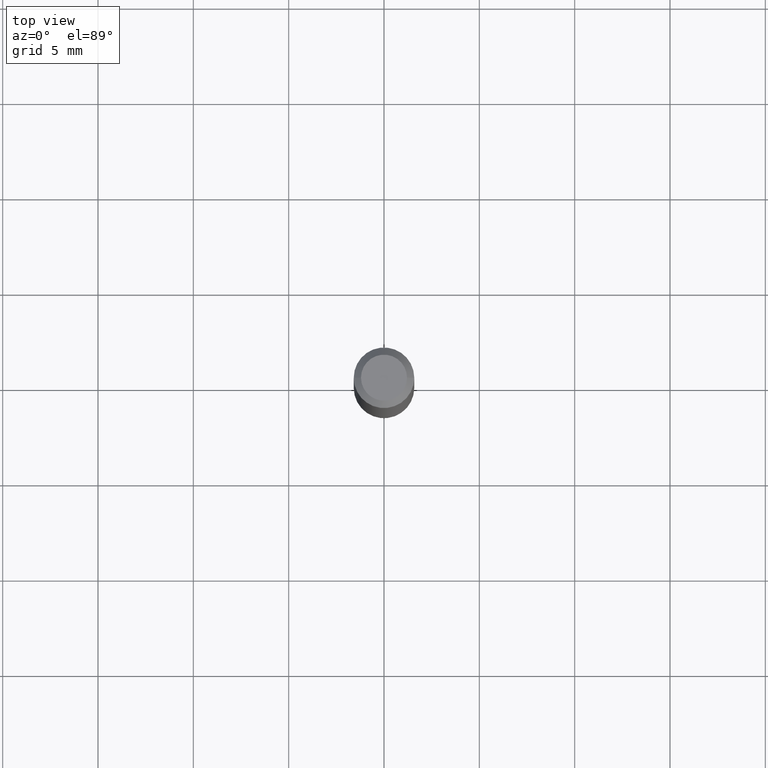
[diagram: clean part render]
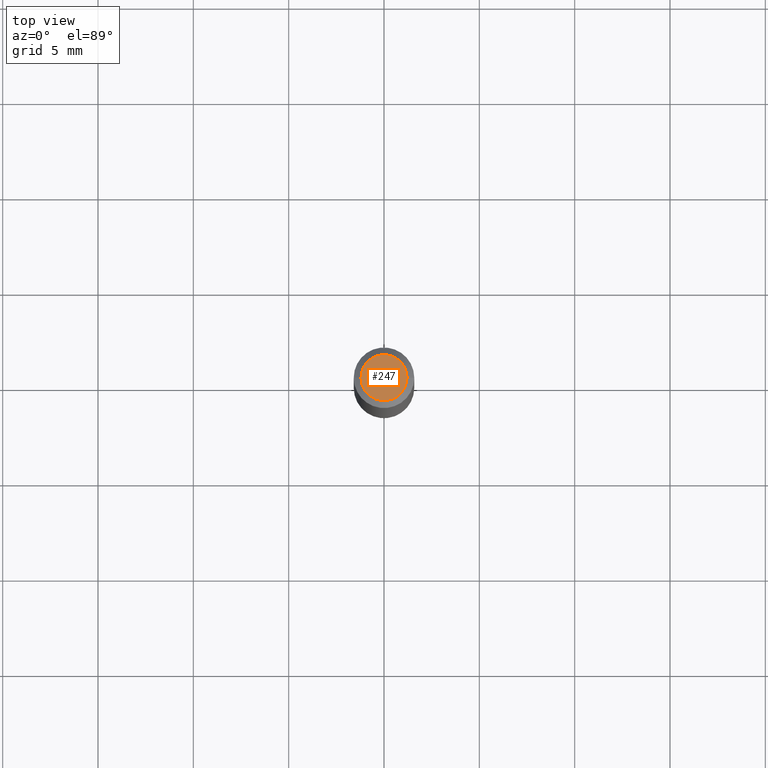
[diagram: same view with one face highlighted and labeled with its STEP entity id]
A machine part, top view. The second image highlights one B-rep face of the part: STEP entity #247.
In plain terms, the highlighted planar face has unit normal (0, -0, -1).
Its self-contained STEP definition (entity closure, byte-faithful):
#8 = DIRECTION ( 'NONE',  ( -2.445468806185136597E-29, 3.491481338843145583E-15, 1.000000000000000000 ) ) ;
#19 = FACE_OUTER_BOUND ( 'NONE', #425, .T. ) ;
#26 = DIRECTION ( 'NONE',  ( 2.438088387897960049E-29, -3.491481338843145188E-15, -1.000000000000000000 ) ) ;
#38 = CARTESIAN_POINT ( 'NONE',  ( -0.04749999999999999362, 3.578768372314202124E-16, -5.229656247639803061E-16 ) ) ;
#51 = VERTEX_POINT ( 'NONE', #313 ) ;
#61 = ORIENTED_EDGE ( 'NONE', *, *, #129, .T. ) ;
#102 = CIRCLE ( 'NONE', #378, 0.04749999999999999362 ) ;
#114 = PLANE ( 'NONE',  #321 ) ;
#129 = EDGE_CURVE ( 'NONE', #401, #51, #434, .T. ) ;
#143 = DIRECTION ( 'NONE',  ( 1.000000000000000000, -6.982962677686267499E-15, 4.852736867747366768E-29 ) ) ;
#198 = CARTESIAN_POINT ( 'NONE',  ( 3.316907271900976096E-16, 0.04749999999999999362, -4.273281759770383169E-16 ) ) ;
#201 = AXIS2_PLACEMENT_3D ( 'NONE', #447, #255, #143 ) ;
#247 = ADVANCED_FACE ( 'NONE', ( #19 ), #114, .F. ) ;
#255 = DIRECTION ( 'NONE',  ( -2.445468806185136597E-29, 3.491481338843145583E-15, 1.000000000000000000 ) ) ;
#257 = ORIENTED_EDGE ( 'NONE', *, *, #370, .T. ) ;
#309 = DIRECTION ( 'NONE',  ( -1.000000000000000000, 6.982962677686265922E-15, -4.876176775795935793E-29 ) ) ;
#313 = CARTESIAN_POINT ( 'NONE',  ( 0.04749999999999999362, -4.035134999187587991E-16, -5.229656247639753758E-16 ) ) ;
#321 = AXIS2_PLACEMENT_3D ( 'NONE', #198, #26, #309 ) ;
#332 = CARTESIAN_POINT ( 'NONE',  ( 1.278896122067429216E-44, -1.825924719719875646E-30, -5.229656247639779395E-16 ) ) ;
#370 = EDGE_CURVE ( 'NONE', #51, #401, #102, .T. ) ;
#378 = AXIS2_PLACEMENT_3D ( 'NONE', #332, #8, #410 ) ;
#401 = VERTEX_POINT ( 'NONE', #38 ) ;
#410 = DIRECTION ( 'NONE',  ( 1.000000000000000000, -6.982962677686267499E-15, 4.852736867747366768E-29 ) ) ;
#425 = EDGE_LOOP ( 'NONE', ( #61, #257 ) ) ;
#434 = CIRCLE ( 'NONE', #201, 0.04749999999999999362 ) ;
#447 = CARTESIAN_POINT ( 'NONE',  ( 1.278896122067429216E-44, -1.825924719719875646E-30, -5.229656247639779395E-16 ) ) ;